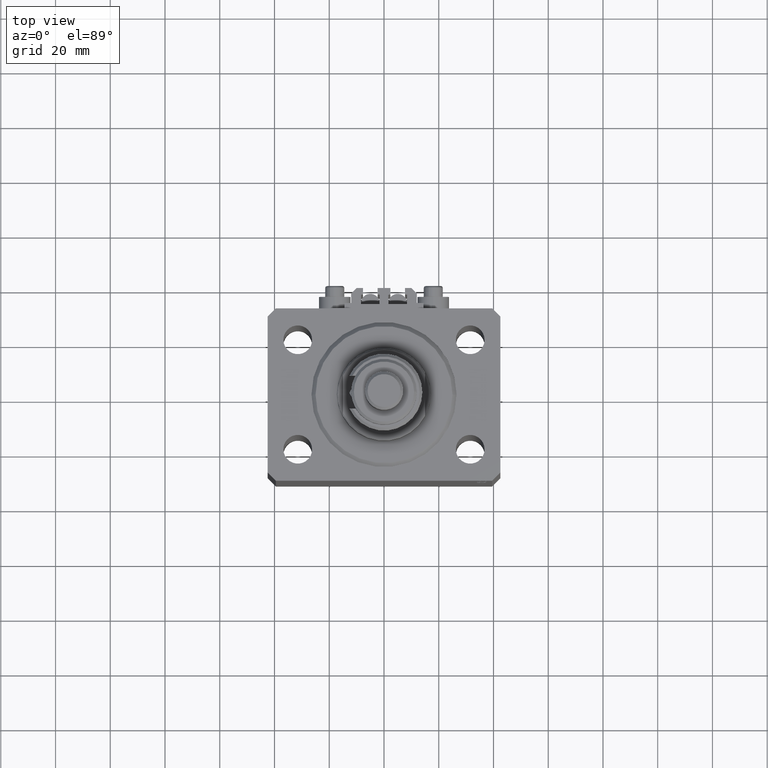
[diagram: clean part render]
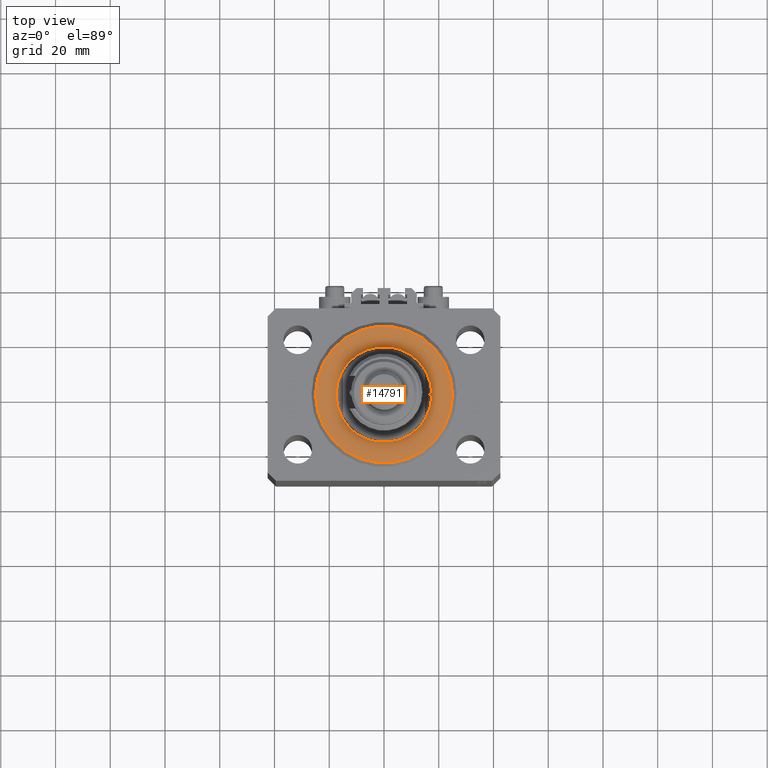
[diagram: same view with one face highlighted and labeled with its STEP entity id]
A machine part, top view. The second image highlights one B-rep face of the part: STEP entity #14791.
In plain terms, the highlighted planar face has unit normal (0, 0, -1).
Its self-contained STEP definition (entity closure, byte-faithful):
#524 = AXIS2_PLACEMENT_3D ( 'NONE', #17267, #4643, #44855 ) ;
#1603 = CARTESIAN_POINT ( 'NONE',  ( 0.000000000000000000, 0.000000000000000000, 0.000000000000000000 ) ) ;
#1694 = DIRECTION ( 'NONE',  ( 1.000000000000000000, 0.000000000000000000, -0.000000000000000000 ) ) ;
#4423 = EDGE_CURVE ( 'NONE', #37616, #10062, #6269, .T. ) ;
#4643 = DIRECTION ( 'NONE',  ( 0.000000000000000000, 0.000000000000000000, 1.000000000000000000 ) ) ;
#5061 = DIRECTION ( 'NONE',  ( 1.000000000000000000, 0.000000000000000000, 0.000000000000000000 ) ) ;
#5561 = PLANE ( 'NONE',  #49285 ) ;
#5724 = CARTESIAN_POINT ( 'NONE',  ( -17.50000000000000000, 2.143131898507868643E-15, 2.168404344971008868E-16 ) ) ;
#6095 = CARTESIAN_POINT ( 'NONE',  ( 0.000000000000000000, 0.000000000000000000, 0.000000000000000000 ) ) ;
#6269 = CIRCLE ( 'NONE', #524, 17.50000000000000000 ) ;
#9604 = DIRECTION ( 'NONE',  ( 1.000000000000000000, 0.000000000000000000, 0.000000000000000000 ) ) ;
#10062 = VERTEX_POINT ( 'NONE', #44358 ) ;
#10216 = DIRECTION ( 'NONE',  ( 0.000000000000000000, 0.000000000000000000, 1.000000000000000000 ) ) ;
#10376 = ORIENTED_EDGE ( 'NONE', *, *, #37742, .T. ) ;
#10878 = DIRECTION ( 'NONE',  ( 1.000000000000000000, 0.000000000000000000, 0.000000000000000000 ) ) ;
#11391 = CARTESIAN_POINT ( 'NONE',  ( 0.000000000000000000, 0.000000000000000000, 0.000000000000000000 ) ) ;
#12455 = DIRECTION ( 'NONE',  ( -0.000000000000000000, -0.000000000000000000, -1.000000000000000000 ) ) ;
#13452 = AXIS2_PLACEMENT_3D ( 'NONE', #1603, #12455, #9604 ) ;
#14791 = ADVANCED_FACE ( 'NONE', ( #40885, #33917 ), #5561, .F. ) ;
#15316 = ORIENTED_EDGE ( 'NONE', *, *, #16448, .T. ) ;
#16448 = EDGE_CURVE ( 'NONE', #10062, #37616, #21210, .T. ) ;
#17190 = DIRECTION ( 'NONE',  ( 0.000000000000000000, 0.000000000000000000, 1.000000000000000000 ) ) ;
#17267 = CARTESIAN_POINT ( 'NONE',  ( 0.000000000000000000, 0.000000000000000000, 0.000000000000000000 ) ) ;
#18229 = EDGE_LOOP ( 'NONE', ( #10376, #31235 ) ) ;
#18520 = EDGE_LOOP ( 'NONE', ( #15316, #18781 ) ) ;
#18781 = ORIENTED_EDGE ( 'NONE', *, *, #4423, .T. ) ;
#19113 = DIRECTION ( 'NONE',  ( -0.000000000000000000, -0.000000000000000000, -1.000000000000000000 ) ) ;
#21210 = CIRCLE ( 'NONE', #26140, 17.50000000000000000 ) ;
#22279 = VERTEX_POINT ( 'NONE', #34269 ) ;
#26140 = AXIS2_PLACEMENT_3D ( 'NONE', #6095, #17190, #5061 ) ;
#27750 = VERTEX_POINT ( 'NONE', #28851 ) ;
#28851 = CARTESIAN_POINT ( 'NONE',  ( -24.99999999999995026, 3.153465507804431248E-15, 0.000000000000000000 ) ) ;
#31235 = ORIENTED_EDGE ( 'NONE', *, *, #37597, .T. ) ;
#33917 = FACE_OUTER_BOUND ( 'NONE', #18229, .T. ) ;
#34269 = CARTESIAN_POINT ( 'NONE',  ( 24.99999999999995026, 0.000000000000000000, 0.000000000000000000 ) ) ;
#37597 = EDGE_CURVE ( 'NONE', #27750, #22279, #46375, .T. ) ;
#37616 = VERTEX_POINT ( 'NONE', #5724 ) ;
#37742 = EDGE_CURVE ( 'NONE', #22279, #27750, #40621, .T. ) ;
#40621 = CIRCLE ( 'NONE', #48842, 24.99999999999995026 ) ;
#40885 = FACE_BOUND ( 'NONE', #18520, .T. ) ;
#44358 = CARTESIAN_POINT ( 'NONE',  ( 17.50000000000000000, 0.000000000000000000, 2.168404344971008868E-16 ) ) ;
#44855 = DIRECTION ( 'NONE',  ( 1.000000000000000000, 0.000000000000000000, 0.000000000000000000 ) ) ;
#45267 = CARTESIAN_POINT ( 'NONE',  ( 0.000000000000000000, 0.000000000000000000, 0.000000000000000000 ) ) ;
#46375 = CIRCLE ( 'NONE', #13452, 24.99999999999995026 ) ;
#48842 = AXIS2_PLACEMENT_3D ( 'NONE', #11391, #19113, #10878 ) ;
#49285 = AXIS2_PLACEMENT_3D ( 'NONE', #45267, #10216, #1694 ) ;